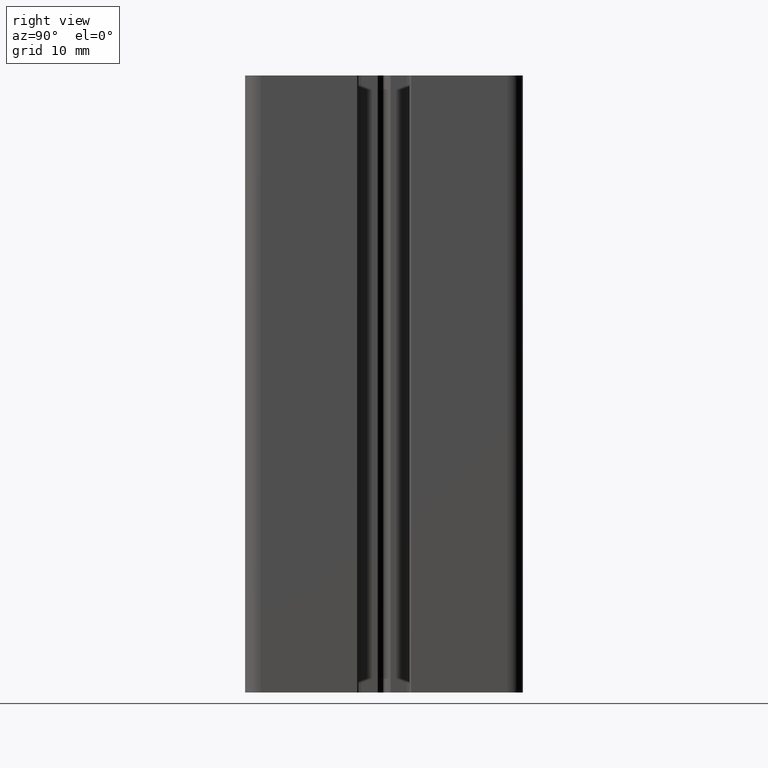
[diagram: clean part render]
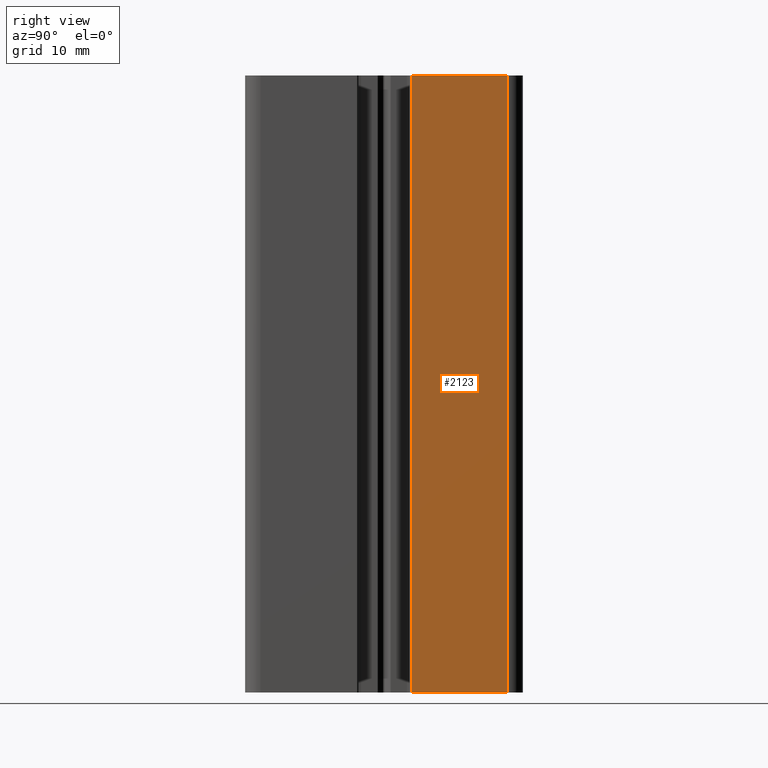
[diagram: same view with one face highlighted and labeled with its STEP entity id]
A machine part, right view. The second image highlights one B-rep face of the part: STEP entity #2123.
In plain terms, the highlighted planar face has unit normal (1, 0, 0).
Its self-contained STEP definition (entity closure, byte-faithful):
#295=FACE_OUTER_BOUND('',#406,.T.);
#406=EDGE_LOOP('',(#1858,#1859,#1860,#1861));
#575=LINE('',#3518,#777);
#599=LINE('',#3579,#801);
#611=LINE('',#3615,#813);
#612=LINE('',#3618,#814);
#777=VECTOR('',#2882,100.);
#801=VECTOR('',#2942,15.5500000000006);
#813=VECTOR('',#2980,100.);
#814=VECTOR('',#2985,15.5500000000006);
#992=VERTEX_POINT('',#3512);
#994=VERTEX_POINT('',#3516);
#1013=VERTEX_POINT('',#3578);
#1024=VERTEX_POINT('',#3614);
#1287=EDGE_CURVE('',#992,#994,#575,.T.);
#1318=EDGE_CURVE('',#1013,#992,#599,.T.);
#1336=EDGE_CURVE('',#1024,#1013,#611,.T.);
#1338=EDGE_CURVE('',#1024,#994,#612,.T.);
#1858=ORIENTED_EDGE('',*,*,#1287,.T.);
#1859=ORIENTED_EDGE('',*,*,#1338,.F.);
#1860=ORIENTED_EDGE('',*,*,#1336,.T.);
#1861=ORIENTED_EDGE('',*,*,#1318,.T.);
#2016=PLANE('',#2344);
#2123=ADVANCED_FACE('',(#295),#2016,.T.);
#2344=AXIS2_PLACEMENT_3D('',#3617,#2983,#2984);
#2882=DIRECTION('',(0.,0.,-1.));
#2942=DIRECTION('',(1.11022302462516E-16,-1.,0.));
#2980=DIRECTION('',(0.,0.,1.));
#2983=DIRECTION('center_axis',(1.,1.11022302462516E-16,0.));
#2984=DIRECTION('ref_axis',(0.,1.,0.));
#2985=DIRECTION('',(1.11022302462516E-16,-1.,0.));
#3512=CARTESIAN_POINT('',(22.5,4.44999999999939,100.));
#3516=CARTESIAN_POINT('',(22.5,4.44999999999939,0.));
#3518=CARTESIAN_POINT('',(22.5,4.4499999999994,0.));
#3578=CARTESIAN_POINT('',(22.5,20.,100.));
#3579=CARTESIAN_POINT('',(22.5,-10.,100.));
#3614=CARTESIAN_POINT('',(22.5,20.,0.));
#3615=CARTESIAN_POINT('',(22.5,20.,0.));
#3617=CARTESIAN_POINT('Origin',(22.5,-20.,0.));
#3618=CARTESIAN_POINT('',(22.5,-10.,0.));